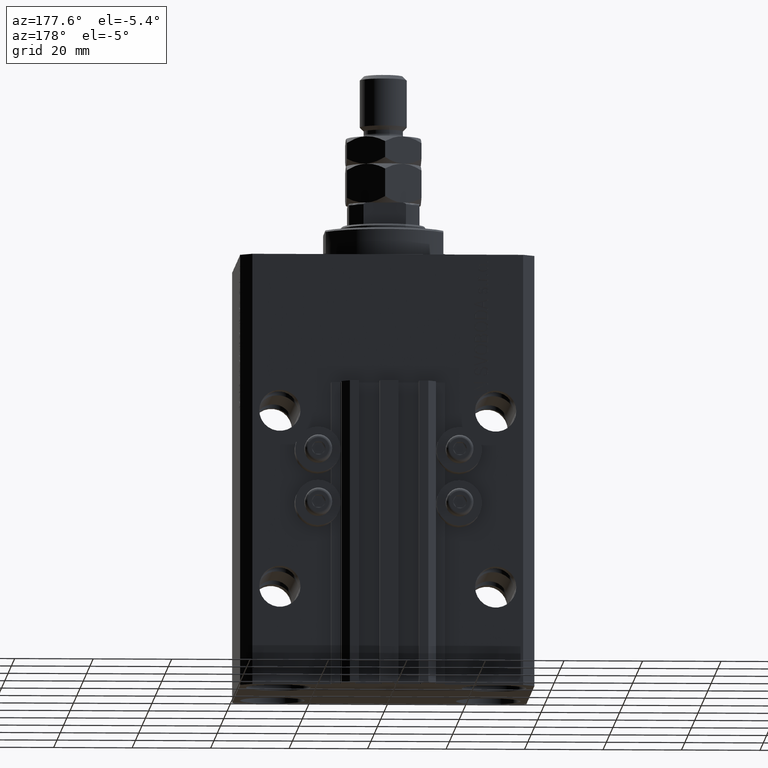
[diagram: clean part render]
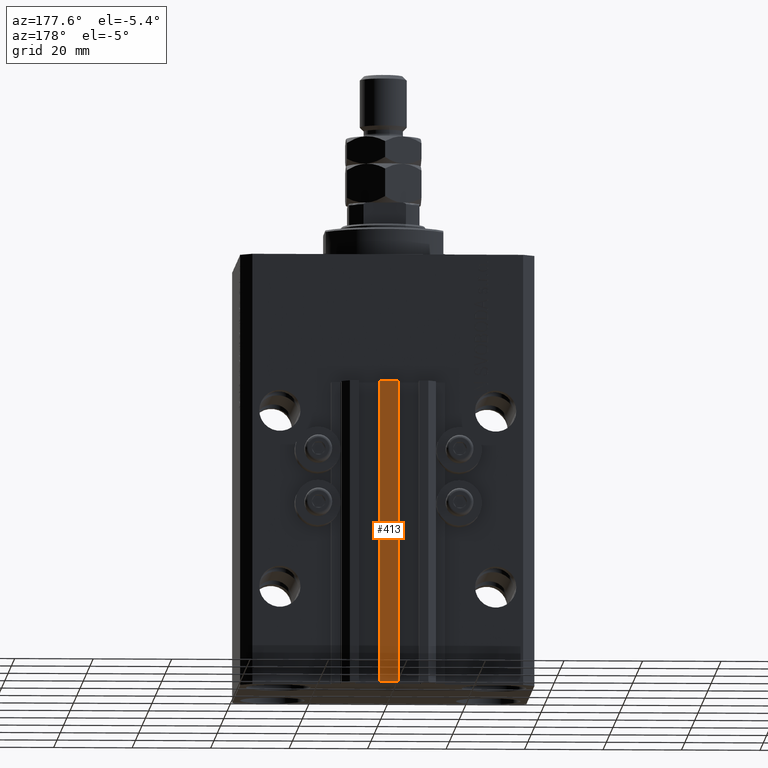
[diagram: same view with one face highlighted and labeled with its STEP entity id]
A machine part, auxiliary view. The second image highlights one B-rep face of the part: STEP entity #413.
In plain terms, the highlighted planar face has unit normal (0, -1, 0).
Its self-contained STEP definition (entity closure, byte-faithful):
#195 = CARTESIAN_POINT ( 'NONE',  ( -2.350000000000003642, 35.50000000000001421, -110.0000000000000000 ) ) ;
#413 = ADVANCED_FACE ( 'NONE', ( #4663 ), #6071, .F. ) ;
#2581 = VECTOR ( 'NONE', #48473, 1000.000000000000000 ) ;
#2583 = LINE ( 'NONE', #16942, #25276 ) ;
#3723 = VERTEX_POINT ( 'NONE', #17771 ) ;
#4165 = VERTEX_POINT ( 'NONE', #5592 ) ;
#4663 = FACE_OUTER_BOUND ( 'NONE', #20476, .T. ) ;
#5592 = CARTESIAN_POINT ( 'NONE',  ( 2.349999999999999645, 35.50000000000001421, -110.0000000000000000 ) ) ;
#5908 = ORIENTED_EDGE ( 'NONE', *, *, #23355, .F. ) ;
#6071 = PLANE ( 'NONE',  #48248 ) ;
#6862 = DIRECTION ( 'NONE',  ( 1.000000000000000000, 0.000000000000000000, 0.000000000000000000 ) ) ;
#10490 = DIRECTION ( 'NONE',  ( 0.000000000000000000, 0.000000000000000000, 1.000000000000000000 ) ) ;
#12630 = VECTOR ( 'NONE', #34091, 1000.000000000000000 ) ;
#12754 = EDGE_CURVE ( 'NONE', #3723, #15055, #24973, .T. ) ;
#15055 = VERTEX_POINT ( 'NONE', #18277 ) ;
#16460 = EDGE_CURVE ( 'NONE', #4165, #15055, #2583, .T. ) ;
#16537 = DIRECTION ( 'NONE',  ( 0.000000000000000000, -1.000000000000000000, 0.000000000000000000 ) ) ;
#16942 = CARTESIAN_POINT ( 'NONE',  ( 2.349999999999999645, 35.50000000000001421, -110.0000000000000000 ) ) ;
#17771 = CARTESIAN_POINT ( 'NONE',  ( -2.350000000000003642, 35.50000000000001421, -33.00000000000000000 ) ) ;
#18277 = CARTESIAN_POINT ( 'NONE',  ( 2.349999999999999645, 35.50000000000001421, -33.00000000000000000 ) ) ;
#18841 = CARTESIAN_POINT ( 'NONE',  ( -2.350000000000003642, 35.50000000000001421, -110.0000000000000000 ) ) ;
#20476 = EDGE_LOOP ( 'NONE', ( #45603, #23894, #5908, #39573 ) ) ;
#23355 = EDGE_CURVE ( 'NONE', #46253, #4165, #41285, .T. ) ;
#23894 = ORIENTED_EDGE ( 'NONE', *, *, #16460, .F. ) ;
#24973 = LINE ( 'NONE', #47451, #40869 ) ;
#25276 = VECTOR ( 'NONE', #10490, 1000.000000000000000 ) ;
#27444 = CARTESIAN_POINT ( 'NONE',  ( -2.350000000000003642, 35.50000000000001421, -110.0000000000000000 ) ) ;
#34091 = DIRECTION ( 'NONE',  ( 0.000000000000000000, 0.000000000000000000, 1.000000000000000000 ) ) ;
#36819 = LINE ( 'NONE', #195, #12630 ) ;
#39573 = ORIENTED_EDGE ( 'NONE', *, *, #40223, .T. ) ;
#40223 = EDGE_CURVE ( 'NONE', #46253, #3723, #36819, .T. ) ;
#40869 = VECTOR ( 'NONE', #6862, 1000.000000000000000 ) ;
#41285 = LINE ( 'NONE', #44760, #2581 ) ;
#42993 = DIRECTION ( 'NONE',  ( 0.000000000000000000, -0.000000000000000000, -1.000000000000000000 ) ) ;
#44760 = CARTESIAN_POINT ( 'NONE',  ( -2.350000000000003642, 35.50000000000001421, -110.0000000000000000 ) ) ;
#45603 = ORIENTED_EDGE ( 'NONE', *, *, #12754, .T. ) ;
#46253 = VERTEX_POINT ( 'NONE', #18841 ) ;
#47451 = CARTESIAN_POINT ( 'NONE',  ( -2.350000000000003642, 35.50000000000001421, -33.00000000000000000 ) ) ;
#48248 = AXIS2_PLACEMENT_3D ( 'NONE', #27444, #16537, #42993 ) ;
#48473 = DIRECTION ( 'NONE',  ( 1.000000000000000000, 0.000000000000000000, 0.000000000000000000 ) ) ;